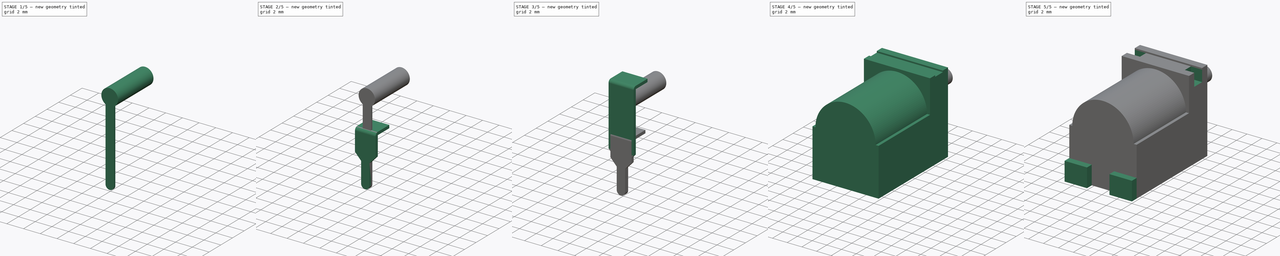
[diagram: build sequence overview — one tinted view per stage of 5, left to right]
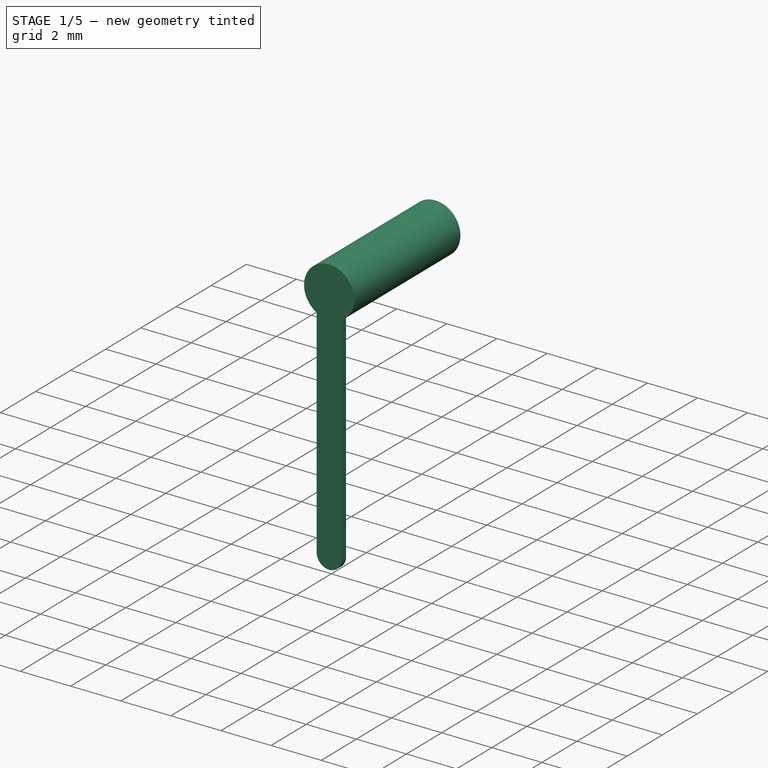
[diagram: stage 1 of 5 — iso view after this stage's code; geometry added in this stage tinted green]
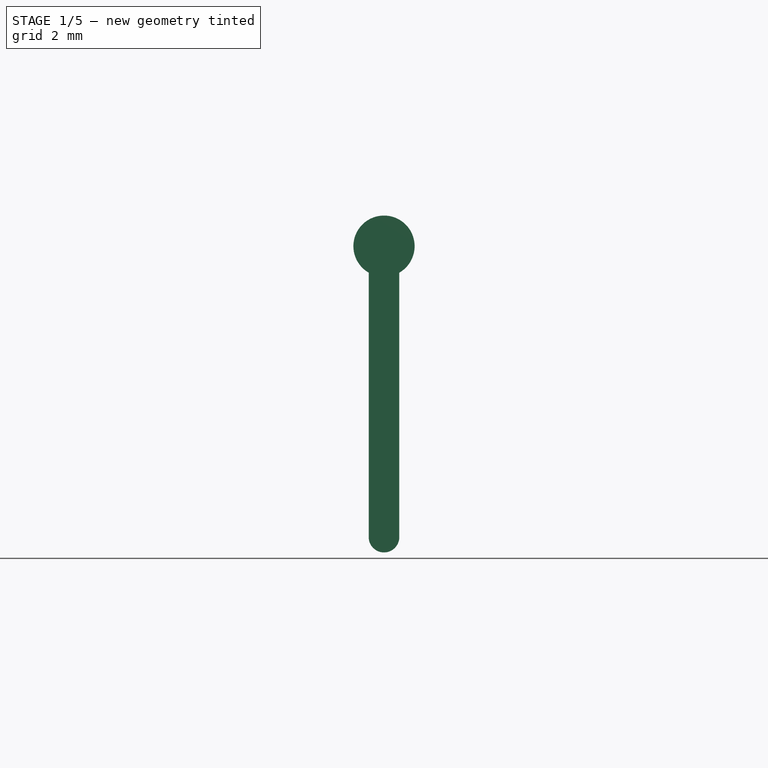
[diagram: stage 1 of 5 — front view after this stage's code; geometry added in this stage tinted green]
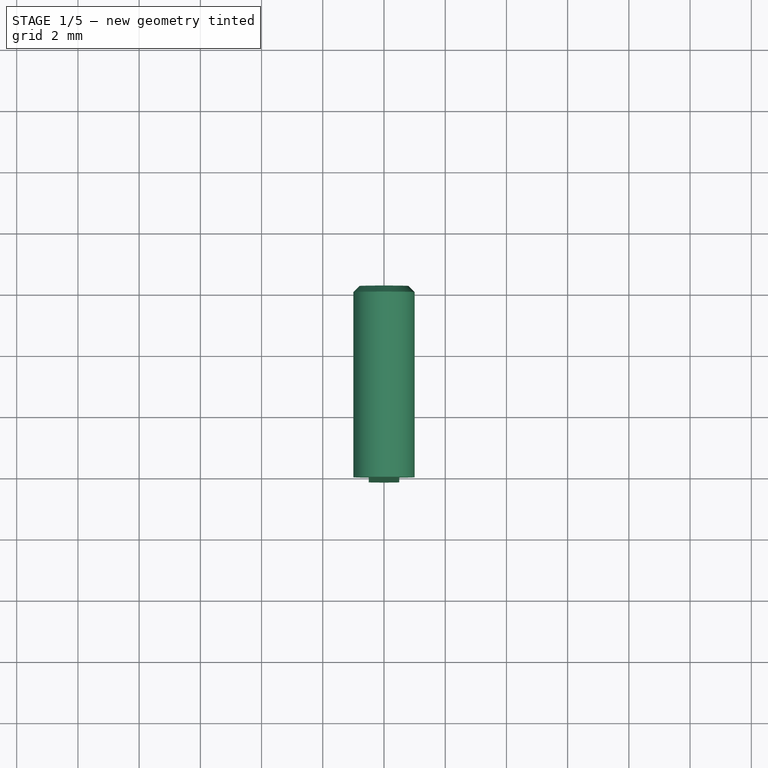
[diagram: stage 1 of 5 — top view after this stage's code; geometry added in this stage tinted green]
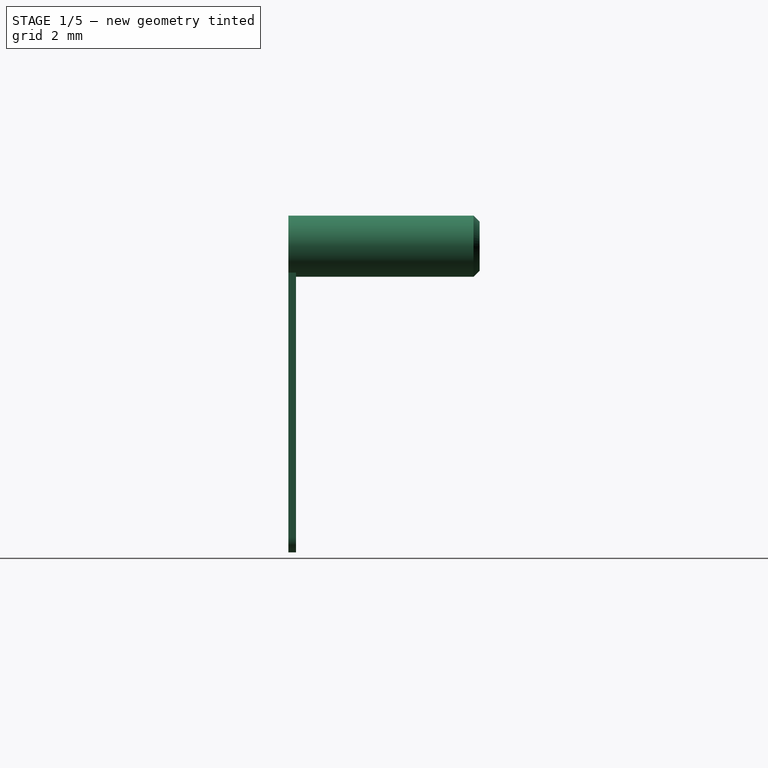
[diagram: stage 1 of 5 — right view after this stage's code; geometry added in this stage tinted green]
FCSTD DOCUMENT  (FreeCAD 0.17R13541 (Git))
Label: barrel_jack
License: All rights reserved
LicenseURL: http://en.wikipedia.org/wiki/All_rights_reserved
objects: Sketcher::SketchObject×12, PartDesign::Pad×9, PartDesign::Body×4, PartDesign::Pocket×3, PartDesign::Fillet×2, PartDesign::Chamfer×1, App::Part×1
note: 43 computed .brp shape members not serialized (recipe doc carries the construction recipe); baked Part::Feature solids carry a one-line shape summary decoded from their .brp

FEATURE [PartDesign::Body] Body002  label="leg_side"
  Group = -> [Sketch009,Pad005,Sketch010,Pad006,Fillet001]
  Origin = -> Origin003
  Placement = pos=(-4.5,-3,0) rot=(0,0,1;-1.5708rad)
  Tip = -> Fillet001
FEATURE [Sketcher::SketchObject] Sketch011
  MapMode = 5
  Placement = pos=(0,0,0) rot=(1,0,0;1.5708rad)
  Support = -> [XZ_Plane004]
  sketch-geometry (4):
    g0: ArcOfCircle CenterX=0 CenterY=-3 CenterZ=0 NormalX=0 NormalY=0 NormalZ=1 AngleXU=0 Radius=0.5 StartAngle=3.14159 EndAngle=6.28319
    g1: ArcOfCircle CenterX=0 CenterY=6.50603 CenterZ=0 NormalX=0 NormalY=0 NormalZ=1 AngleXU=0 Radius=1 StartAngle=5.23599 EndAngle=10.472
    g2: LineSegment StartX=0.5 StartY=5.64 StartZ=0 EndX=0.5 EndY=-3 EndZ=0
    g3: LineSegment StartX=-0.5 StartY=-3 StartZ=0 EndX=-0.5 EndY=5.64 EndZ=0
  constraints (14):
    c: Coincident(g2,g1)
    c: Coincident(g2,g0)
    c: Vertical(g2)
    c: Coincident(g3,g0)
    c: Coincident(g3,g1)
    c: Vertical(g3)
    c: Radius(g1) = 1
    c: Radius(g0) = 0.5
    c: Horizontal(g0,g0)
    c: Horizontal(g0,g0)
    c: Horizontal(g1,g1)
    c: Distance(g2) = 8.64
    c: PointOnObject(g0,g-2)
    c: Distance(g0,g-1) = 3
FEATURE [PartDesign::Pad] Pad007
  Length = 0.125
  Length2 = 0.125
  Placement = pos=(0,0,0) rot=(1,0,0;1.5708rad)
  Profile = -> Sketch011
  Type = 4
FEATURE [Sketcher::SketchObject] Sketch012
  ExternalGeometry = -> [Pad007]
  MapMode = 5
  Placement = pos=(0,0.125,0) rot=(-1,0,0;1.5708rad)
  Support = -> [Pad007]
  sketch-geometry (1):
    g0: Circle CenterX=0 CenterY=-6.50603 CenterZ=0 NormalX=0 NormalY=0 NormalZ=1 AngleXU=0 Radius=1
  constraints (2):
    c: Coincident(g0,g-3)
    c: PointOnObject(g-3,g0)
FEATURE [PartDesign::Pad] Pad008
  BaseFeature = -> Pad007
  Length = 6
  Length2 = 100
  Placement = pos=(0,0,0) rot=(1,0,0;1.5708rad)
  Profile = -> Sketch012
  Type = 0
FEATURE [PartDesign::Chamfer] Chamfer
  Base = -> Pad008 [Edge16]
  BaseFeature = -> Pad008
  Placement = pos=(0,0,0) rot=(1,0,0;1.5708rad)
  Size = 0.2
FEATURE [PartDesign::Body] Body003  label="leg_barrel"
  Group = -> [Sketch011,Pad007,Sketch012,Pad008,Chamfer]
  Origin = -> Origin004
  Tip = -> Chamfer
FEATURE [App::Part] Part
  Group = -> [Body,Body001,Body002,Body003]
  License = CC BY 3.0
  LicenseURL = http://creativecommons.org/licenses/by/3.0/
  Origin = -> Origin
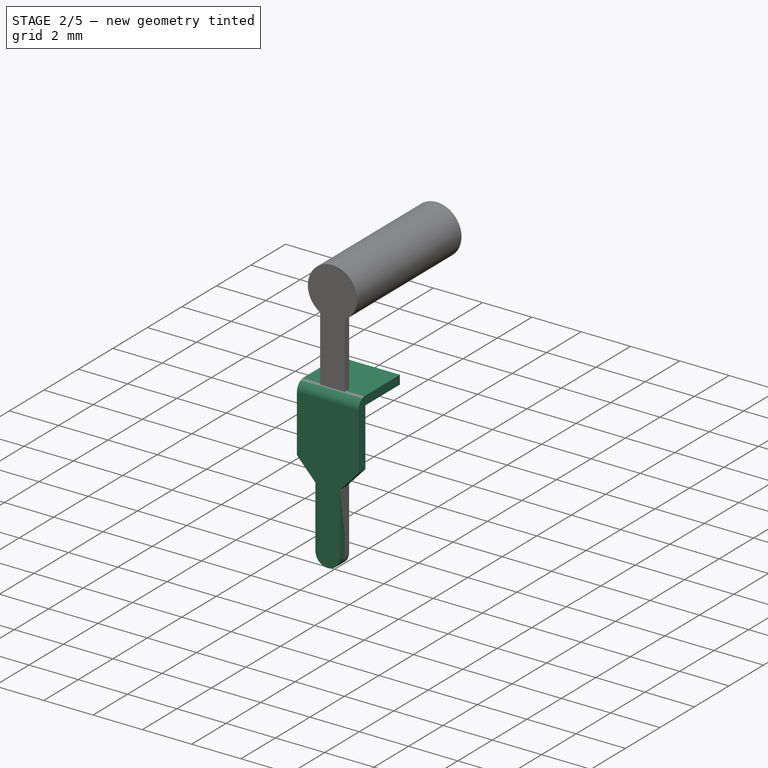
[diagram: stage 2 of 5 — iso view after this stage's code; geometry added in this stage tinted green]
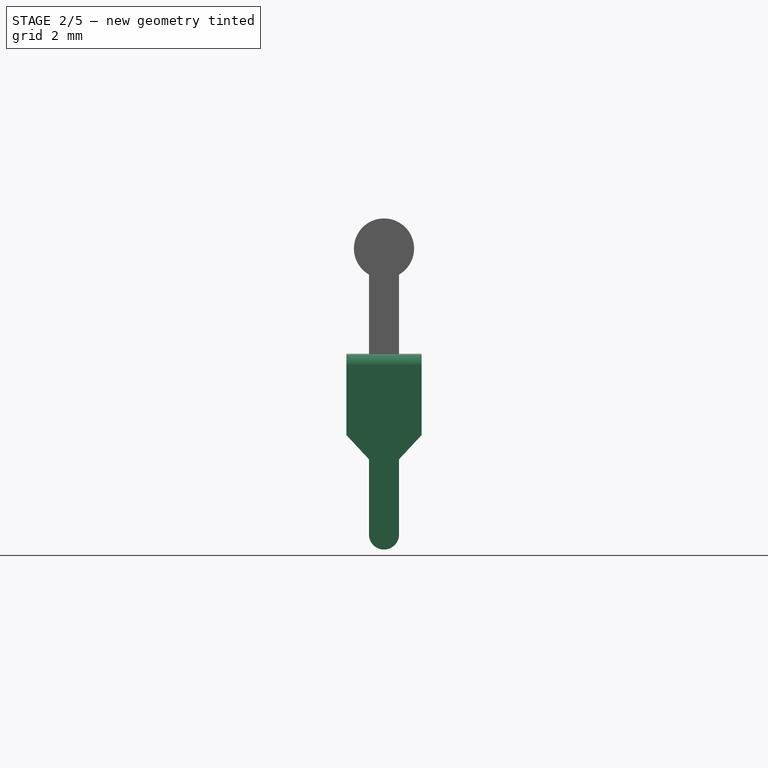
[diagram: stage 2 of 5 — front view after this stage's code; geometry added in this stage tinted green]
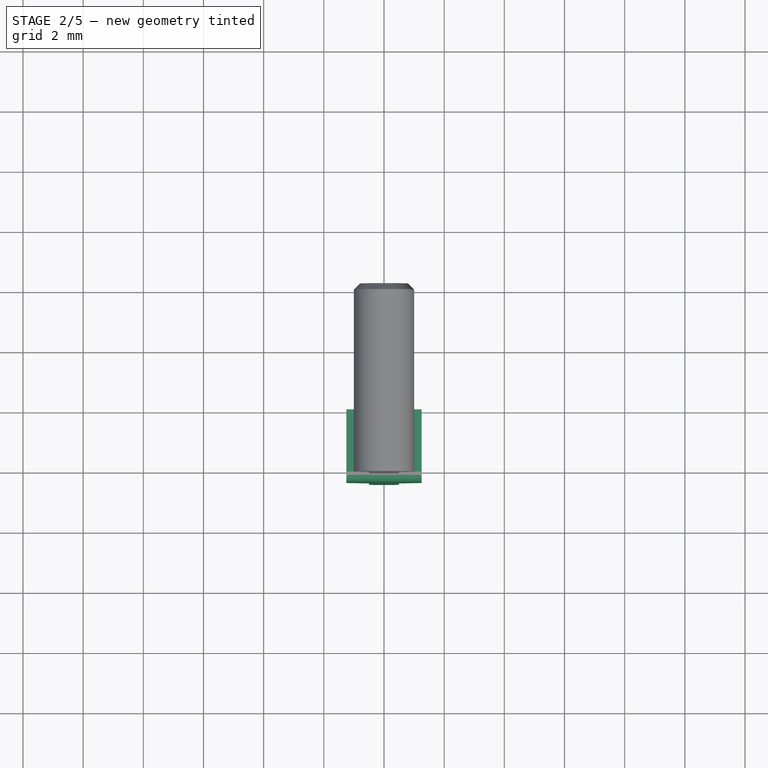
[diagram: stage 2 of 5 — top view after this stage's code; geometry added in this stage tinted green]
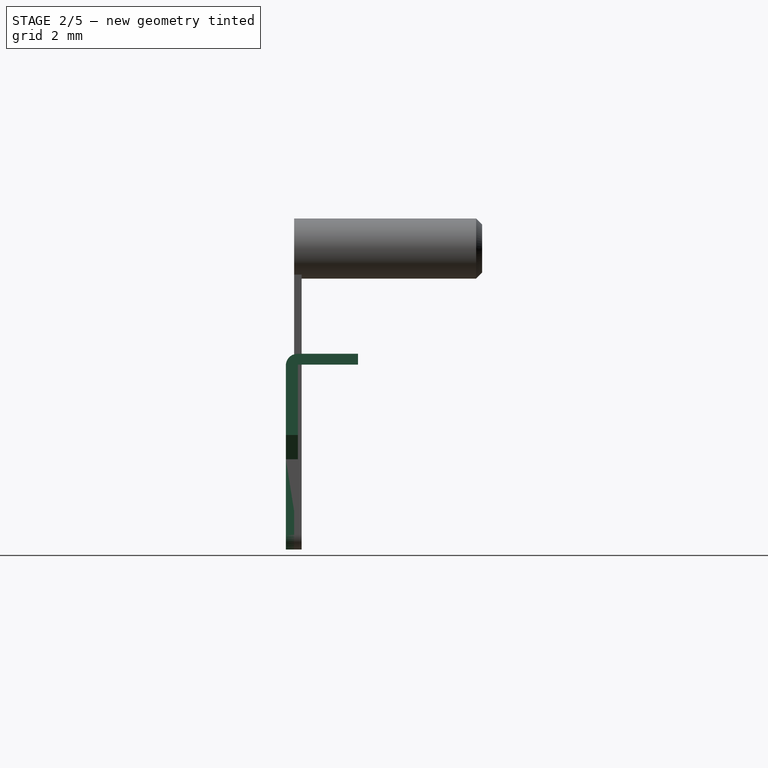
[diagram: stage 2 of 5 — right view after this stage's code; geometry added in this stage tinted green]
FEATURE [PartDesign::Body] Body001  label="leg_back"
  Group = -> [Sketch006,Pad003,Sketch007,Pad004,Fillet]
  Origin = -> Origin002
  Placement = pos=(0,-5.82,0) rot=(0,0,1;0rad)
  Tip = -> Fillet
FEATURE [Sketcher::SketchObject] Sketch009
  MapMode = 5
  Placement = pos=(0,0,0) rot=(1,0,0;1.5708rad)
  Support = -> [XZ_Plane003]
  sketch-geometry (9):
    g0: LineSegment StartX=-0.5 StartY=-3 StartZ=0 EndX=-0.5 EndY=-0.5 EndZ=0
    g1: LineSegment StartX=-0.5 StartY=-0.5 StartZ=0 EndX=-1.25 EndY=0.306531 EndZ=0
    g2: LineSegment StartX=-1.25 StartY=0.306531 StartZ=0 EndX=-1.25 EndY=3.00653 EndZ=0
    g3: LineSegment StartX=-1.25 StartY=3.00653 StartZ=0 EndX=1.25 EndY=3.00653 EndZ=0
    g4: LineSegment StartX=1.25 StartY=3.00653 StartZ=0 EndX=1.25 EndY=0.306531 EndZ=0
    g5: LineSegment StartX=1.25 StartY=0.306531 StartZ=0 EndX=0.5 EndY=-0.5 EndZ=0
    g6: LineSegment StartX=0.5 StartY=-0.5 StartZ=0 EndX=0.5 EndY=-3 EndZ=0
    g7: ArcOfCircle CenterX=0 CenterY=-3 CenterZ=0 NormalX=0 NormalY=0 NormalZ=1 AngleXU=0 Radius=0.5 StartAngle=3.14159 EndAngle=6.28319
    g8: GeomPoint X=0 Y=3.00653 Z=0
  constraints (27):
    c: Vertical(g0)
    c: Coincident(g0,g1)
    c: Coincident(g1,g2)
    c: Vertical(g2)
    c: Coincident(g2,g3)
    c: Horizontal(g3)
    c: Coincident(g3,g4)
    c: Vertical(g4)
    c: Coincident(g4,g5)
    c: Coincident(g5,g6)
    c: Vertical(g6)
    c: Coincident(g7,g6)
    c: Coincident(g7,g0)
    c: Horizontal(g0,g7)
    c: Horizontal(g7,g6)
    c: Horizontal(g0,g5)
    c: Horizontal(g1,g4)
    c: Distance(g3) = 2.5
    c: Distance(g4) = 2.7
    c: Distance(g0) = 2.5
    c: Radius(g7) = 0.5
    c: Angle(g6,g5) = 2.3925
    c: Equal(g1,g5)
    c: PointOnObject(g8,g3)
    c: Symmetric(g2,g3,g8)
    c: PointOnObject(g8,g-2)
    c: Distance(g-1,g7) = 3
FEATURE [PartDesign::Pad] Pad005
  Length = 0.4
  Length2 = 100
  Placement = pos=(0,0,0) rot=(1,0,0;1.5708rad)
  Profile = -> Sketch009
  Type = 0
FEATURE [Sketcher::SketchObject] Sketch010
  ExternalGeometry = -> [Pad005]
  MapMode = 5
  Placement = pos=(0,0,0) rot=(-1,0,0;1.5708rad)
  Support = -> [Pad005]
  sketch-geometry (4):
    g0: LineSegment StartX=-1.25 StartY=-3.00653 StartZ=0 EndX=1.25 EndY=-3.00653 EndZ=0
    g1: LineSegment StartX=1.25 StartY=-3.00653 StartZ=0 EndX=1.25 EndY=-2.64653 EndZ=0
    g2: LineSegment StartX=1.25 StartY=-2.64653 StartZ=0 EndX=-1.25 EndY=-2.64653 EndZ=0
    g3: LineSegment StartX=-1.25 StartY=-2.64653 StartZ=0 EndX=-1.25 EndY=-3.00653 EndZ=0
  constraints (11):
    c: Coincident(g0,g1)
    c: Coincident(g1,g2)
    c: Coincident(g2,g3)
    c: Coincident(g3,g0)
    c: Horizontal(g0)
    c: Horizontal(g2)
    c: Vertical(g1)
    c: Vertical(g3)
    c: Coincident(g0,g-3)
    c: Coincident(g0,g-3)
    c: Distance(g1) = 0.36
FEATURE [PartDesign::Pad] Pad006
  BaseFeature = -> Pad005
  Length = 2
  Length2 = 100
  Placement = pos=(0,0,0) rot=(1,0,0;1.5708rad)
  Profile = -> Sketch010
  Type = 0
FEATURE [PartDesign::Fillet] Fillet001
  Base = -> Pad006 [Edge17]
  BaseFeature = -> Pad006
  Placement = pos=(0,0,0) rot=(1,0,0;1.5708rad)
  Radius = 0.39
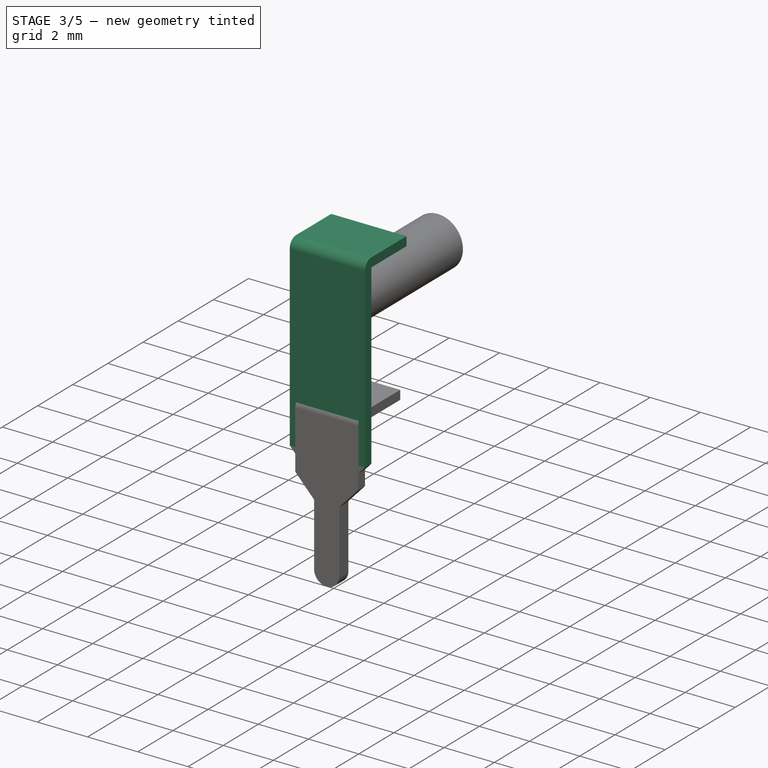
[diagram: stage 3 of 5 — iso view after this stage's code; geometry added in this stage tinted green]
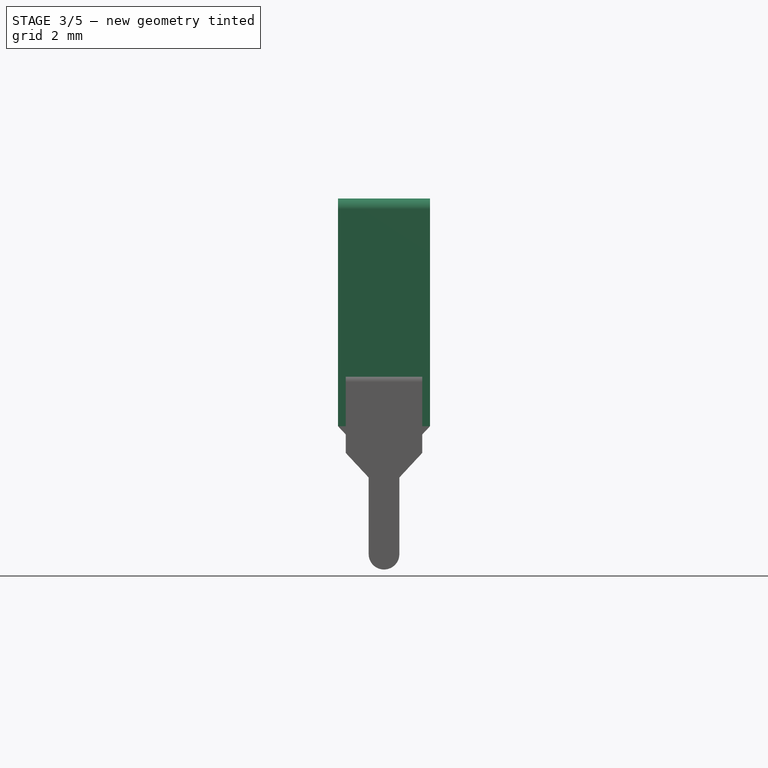
[diagram: stage 3 of 5 — front view after this stage's code; geometry added in this stage tinted green]
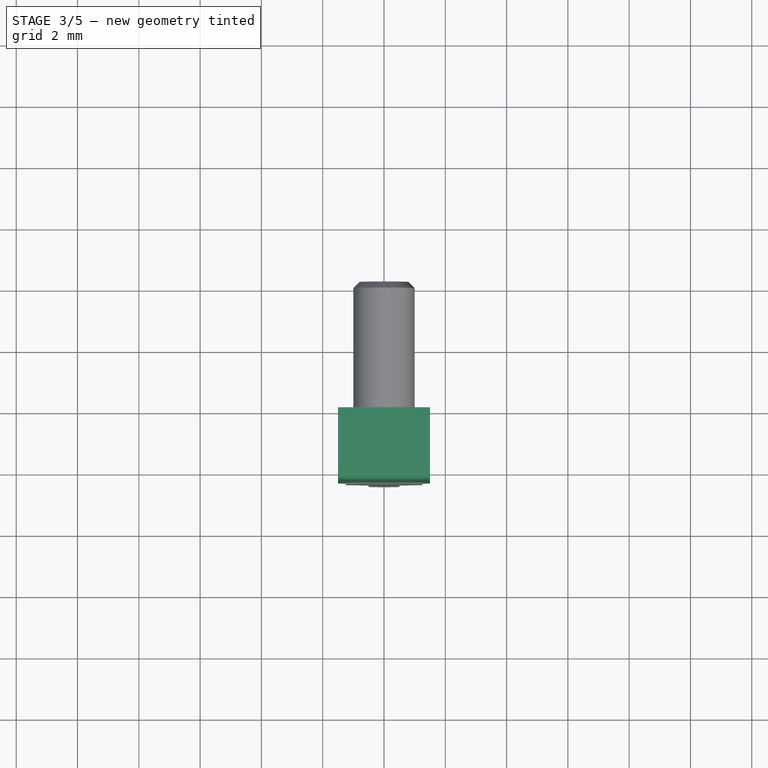
[diagram: stage 3 of 5 — top view after this stage's code; geometry added in this stage tinted green]
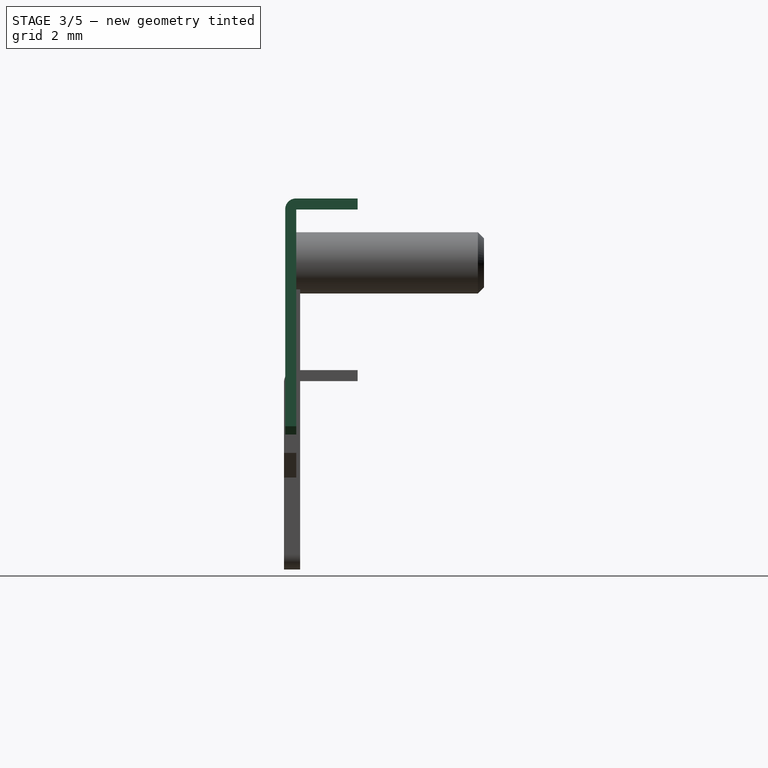
[diagram: stage 3 of 5 — right view after this stage's code; geometry added in this stage tinted green]
FEATURE [PartDesign::Body] Body  label="body"
  Group = -> [Sketch,Pad,Sketch001,Pad001,Sketch002,Pocket,Sketch003,Pocket001,Sketch004,Pocket002,Sketch005,Pad002]
  Origin = -> Origin001
  Placement = pos=(0,7.7,0) rot=(0,0,1;0rad)
  Tip = -> Pad002
FEATURE [Sketcher::SketchObject] Sketch006
  MapMode = 5
  Placement = pos=(0,0,0) rot=(1,0,0;1.5708rad)
  Support = -> [XZ_Plane002]
  sketch-geometry (9):
    g0: LineSegment StartX=-0.5 StartY=-3 StartZ=0 EndX=-0.5 EndY=0.1 EndZ=0
    g1: LineSegment StartX=-0.5 StartY=0.1 StartZ=0 EndX=-1.5 EndY=1.17538 EndZ=0
    g2: LineSegment StartX=-1.5 StartY=1.17538 StartZ=0 EndX=-1.5 EndY=8.60538 EndZ=0
    g3: LineSegment StartX=-1.5 StartY=8.60538 StartZ=0 EndX=1.5 EndY=8.60538 EndZ=0
    g4: LineSegment StartX=1.5 StartY=8.60538 StartZ=0 EndX=1.5 EndY=1.17538 EndZ=0
    g5: LineSegment StartX=1.5 StartY=1.17538 StartZ=0 EndX=0.5 EndY=0.1 EndZ=0
    g6: LineSegment StartX=0.5 StartY=0.1 StartZ=0 EndX=0.5 EndY=-3 EndZ=0
    g7: ArcOfCircle CenterX=0 CenterY=-3 CenterZ=0 NormalX=0 NormalY=0 NormalZ=1 AngleXU=0 Radius=0.5 StartAngle=3.14159 EndAngle=6.28319
    g8: GeomPoint X=0 Y=8.60538 Z=0
  constraints (27):
    c: Vertical(g0)
    c: Coincident(g0,g1)
    c: Coincident(g1,g2)
    c: Vertical(g2)
    c: Coincident(g2,g3)
    c: Horizontal(g3)
    c: Coincident(g3,g4)
    c: Vertical(g4)
    c: Coincident(g4,g5)
    c: Coincident(g5,g6)
    c: Vertical(g6)
    c: Coincident(g7,g6)
    c: Coincident(g7,g0)
    c: Horizontal(g0,g7)
    c: Horizontal(g7,g6)
    c: Horizontal(g0,g5)
    c: Horizontal(g1,g4)
    c: Distance(g3) = 3
    c: Distance(g4) = 7.43
    c: Distance(g0) = 3.1
    c: Radius(g7) = 0.5
    c: Angle(g6,g5) = 2.3925
    c: Equal(g1,g5)
    c: PointOnObject(g8,g3)
    c: Symmetric(g2,g3,g8)
    c: PointOnObject(g8,g-2)
    c: Distance(g-1,g7) = 3
FEATURE [PartDesign::Pad] Pad003
  Length = 0.36
  Length2 = 100
  Placement = pos=(0,0,0) rot=(1,0,0;1.5708rad)
  Profile = -> Sketch006
  Type = 0
FEATURE [Sketcher::SketchObject] Sketch007
  ExternalGeometry = -> [Pad003]
  MapMode = 5
  Placement = pos=(0,0,0) rot=(-1,0,0;1.5708rad)
  Support = -> [Pad003]
  sketch-geometry (4):
    g0: LineSegment StartX=-1.5 StartY=-8.24538 StartZ=0 EndX=1.5 EndY=-8.24538 EndZ=0
    g1: LineSegment StartX=1.5 StartY=-8.24538 StartZ=0 EndX=1.5 EndY=-8.60538 EndZ=0
    g2: LineSegment StartX=1.5 StartY=-8.60538 StartZ=0 EndX=-1.5 EndY=-8.60538 EndZ=0
    g3: LineSegment StartX=-1.5 StartY=-8.60538 StartZ=0 EndX=-1.5 EndY=-8.24538 EndZ=0
  constraints (11):
    c: Coincident(g0,g1)
    c: Coincident(g1,g2)
    c: Coincident(g2,g3)
    c: Coincident(g3,g0)
    c: Horizontal(g0)
    c: Horizontal(g2)
    c: Vertical(g1)
    c: Vertical(g3)
    c: Coincident(g1,g-3)
    c: Coincident(g2,g-3)
    c: Distance(g1) = 0.36
FEATURE [PartDesign::Pad] Pad004
  BaseFeature = -> Pad003
  Length = 2
  Length2 = 100
  Placement = pos=(0,0,0) rot=(1,0,0;1.5708rad)
  Profile = -> Sketch007
  Type = 0
FEATURE [PartDesign::Fillet] Fillet
  Base = -> Pad004 [Edge17]
  BaseFeature = -> Pad004
  Placement = pos=(0,0,0) rot=(1,0,0;1.5708rad)
  Radius = 0.35
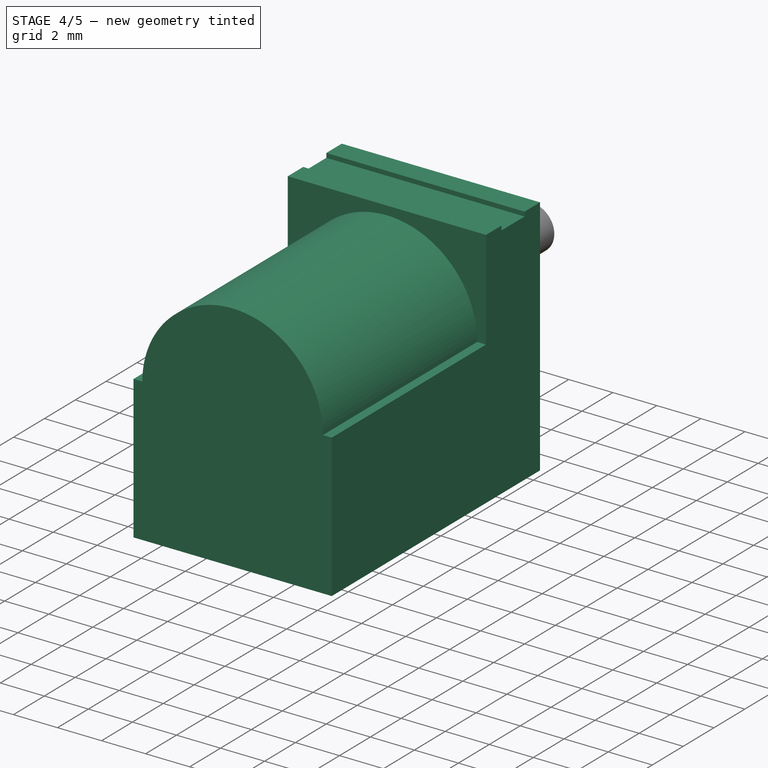
[diagram: stage 4 of 5 — iso view after this stage's code; geometry added in this stage tinted green]
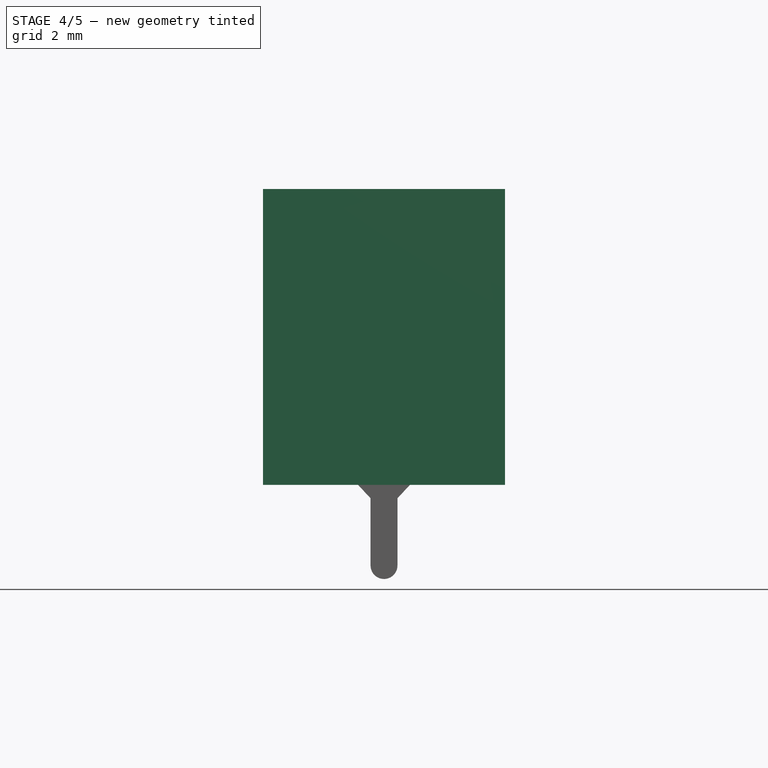
[diagram: stage 4 of 5 — front view after this stage's code; geometry added in this stage tinted green]
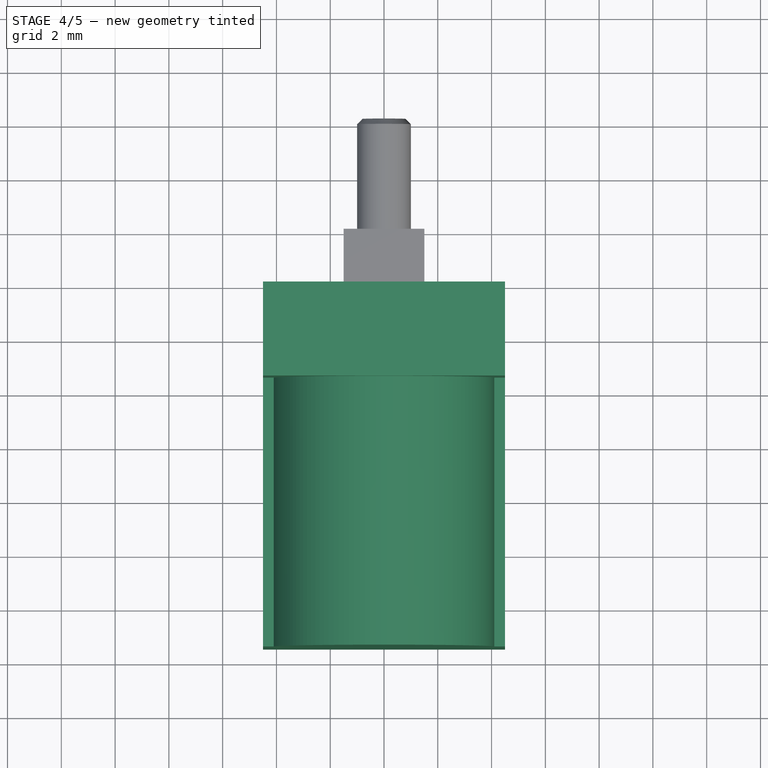
[diagram: stage 4 of 5 — top view after this stage's code; geometry added in this stage tinted green]
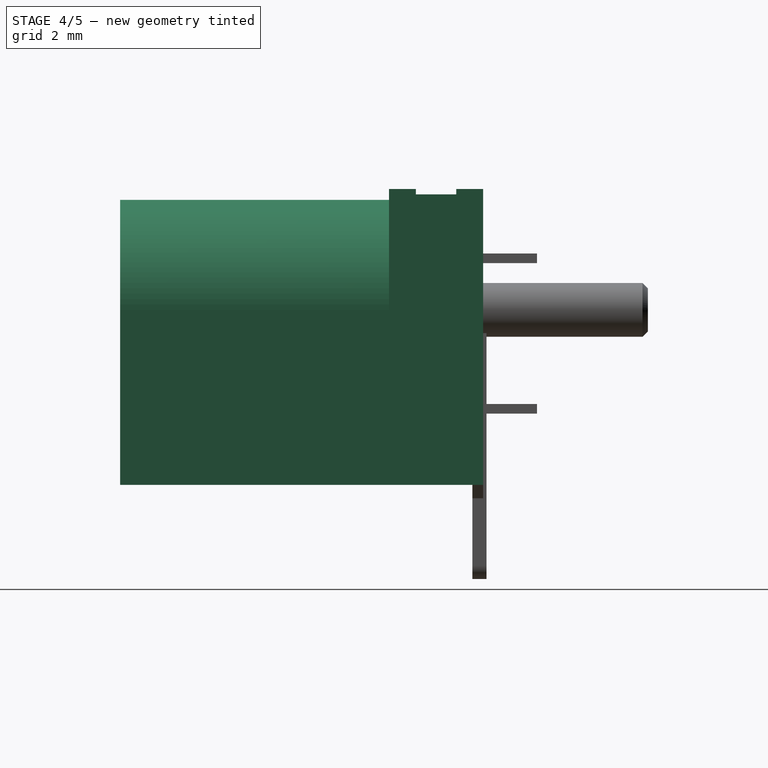
[diagram: stage 4 of 5 — right view after this stage's code; geometry added in this stage tinted green]
FEATURE [Sketcher::SketchObject] Sketch
  MapMode = 5
  Placement = pos=(0,0,0) rot=(1,0,0;1.5708rad)
  Support = -> [XZ_Plane001]
  sketch-geometry (4):
    g0: LineSegment StartX=-4.5 StartY=11 StartZ=0 EndX=4.5 EndY=11 EndZ=0
    g1: LineSegment StartX=4.5 StartY=11 StartZ=0 EndX=4.5 EndY=0 EndZ=0
    g2: LineSegment StartX=4.5 StartY=0 StartZ=0 EndX=-4.5 EndY=0 EndZ=0
    g3: LineSegment StartX=-4.5 StartY=0 StartZ=0 EndX=-4.5 EndY=11 EndZ=0
  constraints (12):
    c: Coincident(g0,g1)
    c: Coincident(g1,g2)
    c: Coincident(g2,g3)
    c: Coincident(g3,g0)
    c: Horizontal(g0)
    c: Horizontal(g2)
    c: Vertical(g1)
    c: Vertical(g3)
    c: PointOnObject(g1,g-1)
    c: Distance(g0) = 9
    c: Distance(g1) = 11
    c: Symmetric(g2,g1,g-1)
FEATURE [PartDesign::Pad] Pad
  Length = 3.5
  Length2 = 100
  Placement = pos=(0,0,0) rot=(1,0,0;1.5708rad)
  Profile = -> Sketch
  Type = 0
FEATURE [Sketcher::SketchObject] Sketch001
  ExternalGeometry = -> [Pad]
  MapMode = 5
  Placement = pos=(0,-3.5,0) rot=(1,0,0;1.5708rad)
  Support = -> [Pad]
  sketch-geometry (6):
    g0: LineSegment StartX=-4.5 StartY=0 StartZ=0 EndX=4.5 EndY=0 EndZ=0
    g1: LineSegment StartX=4.5 StartY=0 StartZ=0 EndX=4.5 EndY=6.5 EndZ=0
    g2: LineSegment StartX=-4.5 StartY=0 StartZ=0 EndX=-4.5 EndY=6.5 EndZ=0
    g3: LineSegment StartX=-4.5 StartY=6.5 StartZ=0 EndX=-4.1 EndY=6.5 EndZ=0
    g4: LineSegment StartX=4.5 StartY=6.5 StartZ=0 EndX=4.1 EndY=6.5 EndZ=0
    g5: ArcOfCircle CenterX=0 CenterY=6.5 CenterZ=0 NormalX=0 NormalY=0 NormalZ=1 AngleXU=0 Radius=4.1 StartAngle=0 EndAngle=3.14159
  constraints (17):
    c: Coincident(g0,g-3)
    c: Coincident(g0,g-3)
    c: Coincident(g1,g0)
    c: Vertical(g1)
    c: Coincident(g2,g0)
    c: Vertical(g2)
    c: Equal(g1,g2)
    c: Coincident(g3,g2)
    c: Horizontal(g3)
    c: Coincident(g4,g1)
    c: Horizontal(g4)
    c: Equal(g4,g3)
    c: Coincident(g5,g3)
    c: Coincident(g5,g4)
    c: Horizontal(g5,g3)
    c: Distance(g1) = 6.5
    c: Radius(g5) = 4.1
FEATURE [PartDesign::Pad] Pad001
  BaseFeature = -> Pad
  Length = 10
  Length2 = 100
  Placement = pos=(0,0,0) rot=(1,0,0;1.5708rad)
  Profile = -> Sketch001
  Type = 0
FEATURE [Sketcher::SketchObject] Sketch002
  ExternalGeometry = -> [Pad001]
  MapMode = 5
  Placement = pos=(0,0,11) rot=(0,0,1;3.14159rad)
  Support = -> [Pad001]
  sketch-geometry (4):
    g0: LineSegment StartX=-4.5 StartY=1 StartZ=0 EndX=4.5 EndY=1 EndZ=0
    g1: LineSegment StartX=4.5 StartY=1 StartZ=0 EndX=4.5 EndY=2.5 EndZ=0
    g2: LineSegment StartX=4.5 StartY=2.5 StartZ=0 EndX=-4.5 EndY=2.5 EndZ=0
    g3: LineSegment StartX=-4.5 StartY=2.5 StartZ=0 EndX=-4.5 EndY=1 EndZ=0
  constraints (12):
    c: Coincident(g0,g1)
    c: Coincident(g1,g2)
    c: Coincident(g2,g3)
    c: Coincident(g3,g0)
    c: Horizontal(g0)
    c: Horizontal(g2)
    c: Vertical(g1)
    c: Vertical(g3)
    c: PointOnObject(g0,g-3)
    c: PointOnObject(g1,g-4)
    c: Distance(g1) = 1.5
    c: Distance(g-1,g0) = 1
FEATURE [PartDesign::Pocket] Pocket
  BaseFeature = -> Pad001
  Length = 0.2
  Length2 = 100
  Placement = pos=(0,0,0) rot=(1,0,0;1.5708rad)
  Profile = -> Sketch002
  Type = 0
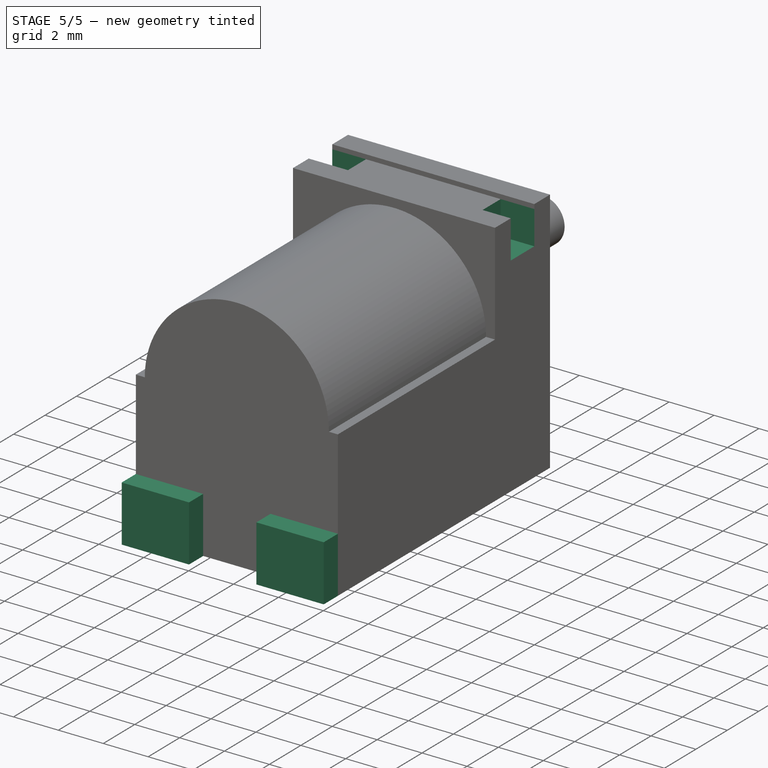
[diagram: stage 5 of 5 — iso view after this stage's code; geometry added in this stage tinted green]
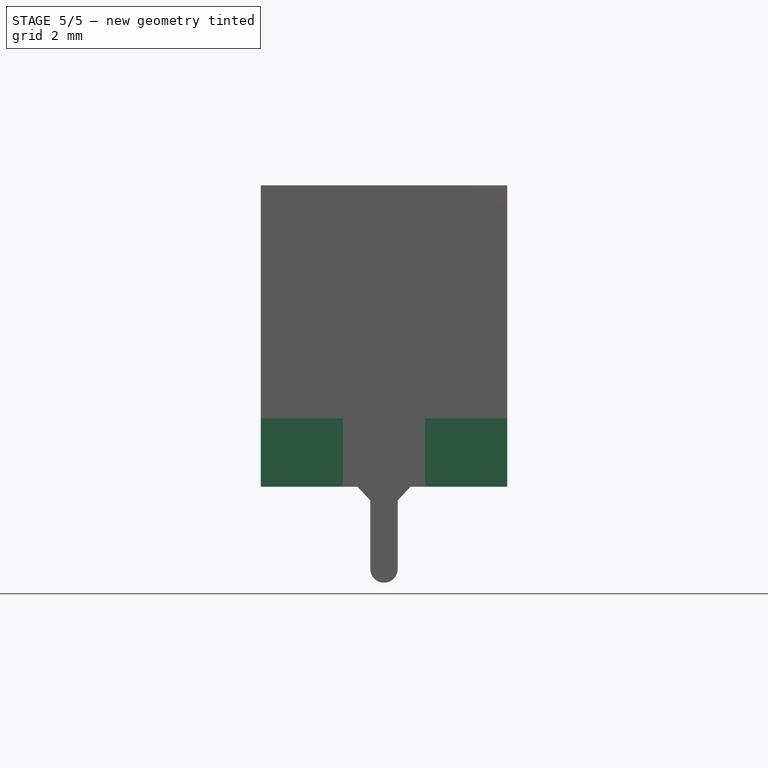
[diagram: stage 5 of 5 — front view after this stage's code; geometry added in this stage tinted green]
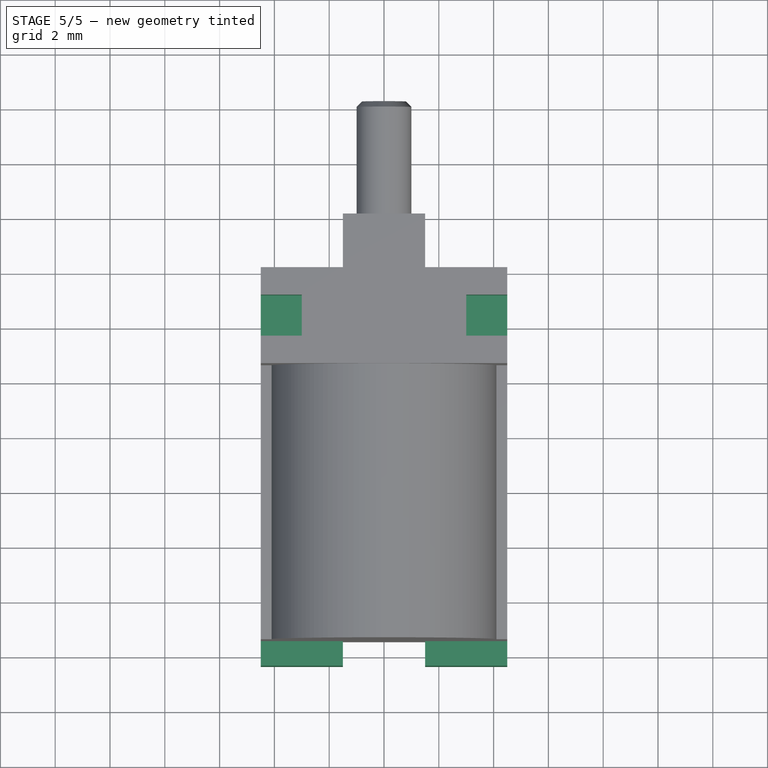
[diagram: stage 5 of 5 — top view after this stage's code; geometry added in this stage tinted green]
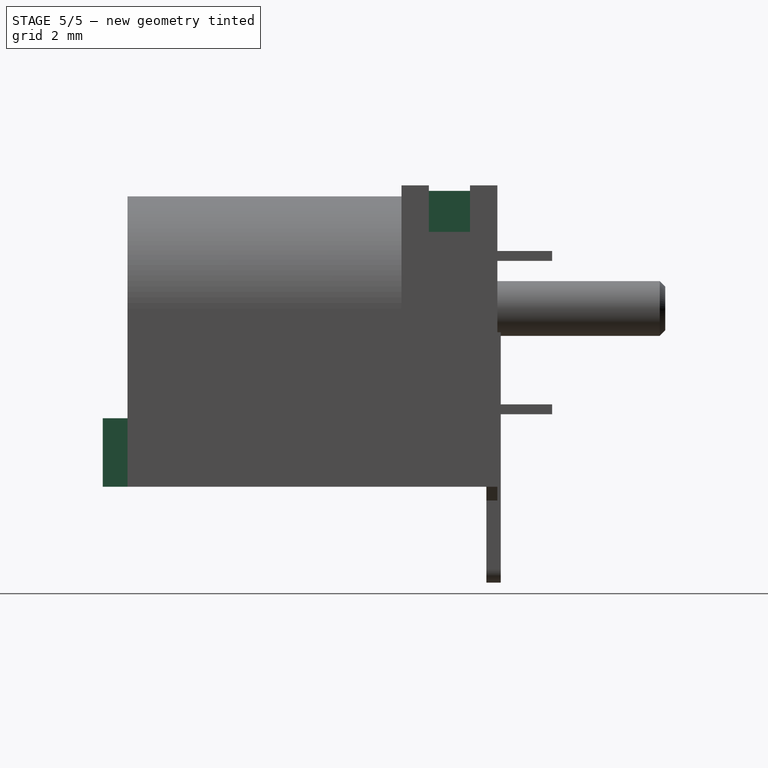
[diagram: stage 5 of 5 — right view after this stage's code; geometry added in this stage tinted green]
FEATURE [Sketcher::SketchObject] Sketch003
  ExternalGeometry = -> [Pocket]
  MapMode = 5
  Placement = pos=(0,0,10.8) rot=(0,0,1;3.14159rad)
  Support = -> [Pocket]
  sketch-geometry (8):
    g0: LineSegment StartX=-4.5 StartY=2.5 StartZ=0 EndX=-3 EndY=2.5 EndZ=0
    g1: LineSegment StartX=-3 StartY=2.5 StartZ=0 EndX=-3 EndY=1 EndZ=0
    g2: LineSegment StartX=-3 StartY=1 StartZ=0 EndX=-4.5 EndY=1 EndZ=0
    g3: LineSegment StartX=-4.5 StartY=1 StartZ=0 EndX=-4.5 EndY=2.5 EndZ=0
    g4: LineSegment StartX=3 StartY=2.5 StartZ=0 EndX=4.5 EndY=2.5 EndZ=0
    g5: LineSegment StartX=4.5 StartY=2.5 StartZ=0 EndX=4.5 EndY=1 EndZ=0
    g6: LineSegment StartX=4.5 StartY=1 StartZ=0 EndX=3 EndY=1 EndZ=0
    g7: LineSegment StartX=3 StartY=1 StartZ=0 EndX=3 EndY=2.5 EndZ=0
  constraints (22):
    c: Coincident(g0,g1)
    c: Coincident(g1,g2)
    c: Coincident(g2,g3)
    c: Coincident(g3,g0)
    c: Horizontal(g0)
    c: Horizontal(g2)
    c: Vertical(g1)
    c: Vertical(g3)
    c: Coincident(g4,g5)
    c: Coincident(g5,g6)
    c: Coincident(g6,g7)
    c: Coincident(g7,g4)
    c: Horizontal(g4)
    c: Horizontal(g6)
    c: Vertical(g5)
    c: Vertical(g7)
    c: Coincident(g0,g-3)
    c: Coincident(g2,g-3)
    c: Coincident(g4,g-4)
    c: Coincident(g5,g-4)
    c: Distance(g0) = 1.5
    c: Distance(g4) = 1.5
FEATURE [PartDesign::Pocket] Pocket001
  BaseFeature = -> Pocket
  Length = 1.5
  Length2 = 100
  Placement = pos=(0,0,0) rot=(1,0,0;1.5708rad)
  Profile = -> Sketch003
  Type = 0
FEATURE [Sketcher::SketchObject] Sketch004
  MapMode = 5
  Placement = pos=(0,0,0) rot=(-1,0,0;1.5708rad)
  Support = -> [Pocket001]
  sketch-geometry (1):
    g0: Circle CenterX=0 CenterY=-6.5 CenterZ=0 NormalX=0 NormalY=0 NormalZ=1 AngleXU=0 Radius=3.2
  constraints (3):
    c: PointOnObject(g0,g-2)
    c: Radius(g0) = 3.2
    c: Distance(g0,g-1) = 6.5
FEATURE [PartDesign::Pocket] Pocket002
  BaseFeature = -> Pocket001
  Length = 7
  Length2 = 100
  Placement = pos=(0,0,0) rot=(1,0,0;1.5708rad)
  Profile = -> Sketch004
  Type = 0
FEATURE [Sketcher::SketchObject] Sketch005
  ExternalGeometry = -> [Pocket002]
  MapMode = 5
  Placement = pos=(0,-13.5,0) rot=(1,0,0;1.5708rad)
  Support = -> [Pocket002]
  sketch-geometry (8):
    g0: LineSegment StartX=-4.5 StartY=0 StartZ=0 EndX=-1.5 EndY=0 EndZ=0
    g1: LineSegment StartX=-1.5 StartY=0 StartZ=0 EndX=-1.5 EndY=2.5 EndZ=0
    g2: LineSegment StartX=-1.5 StartY=2.5 StartZ=0 EndX=-4.5 EndY=2.5 EndZ=0
    g3: LineSegment StartX=-4.5 StartY=2.5 StartZ=0 EndX=-4.5 EndY=0 EndZ=0
    g4: LineSegment StartX=4.5 StartY=0 StartZ=0 EndX=1.5 EndY=0 EndZ=0
    g5: LineSegment StartX=1.5 StartY=0 StartZ=0 EndX=1.5 EndY=2.5 EndZ=0
    g6: LineSegment StartX=1.5 StartY=2.5 StartZ=0 EndX=4.5 EndY=2.5 EndZ=0
    g7: LineSegment StartX=4.5 StartY=2.5 StartZ=0 EndX=4.5 EndY=0 EndZ=0
  constraints (22):
    c: Coincident(g0,g1)
    c: Coincident(g1,g2)
    c: Coincident(g2,g3)
    c: Coincident(g3,g0)
    c: Horizontal(g0)
    c: Horizontal(g2)
    c: Vertical(g1)
    c: Vertical(g3)
    c: Coincident(g4,g5)
    c: Coincident(g5,g6)
    c: Coincident(g6,g7)
    c: Coincident(g7,g4)
    c: Horizontal(g4)
    c: Horizontal(g6)
    c: Vertical(g5)
    c: Vertical(g7)
    c: Coincident(g4,g-5)
    c: Distance(g0) = 3
    c: Distance(g4) = 3
    c: Distance(g7) = 2.5
    c: Distance(g3) = 2.5
    c: Coincident(g0,g-4)
FEATURE [PartDesign::Pad] Pad002
  BaseFeature = -> Pocket002
  Length = 0.9
  Length2 = 100
  Placement = pos=(0,0,0) rot=(1,0,0;1.5708rad)
  Profile = -> Sketch005
  Type = 0
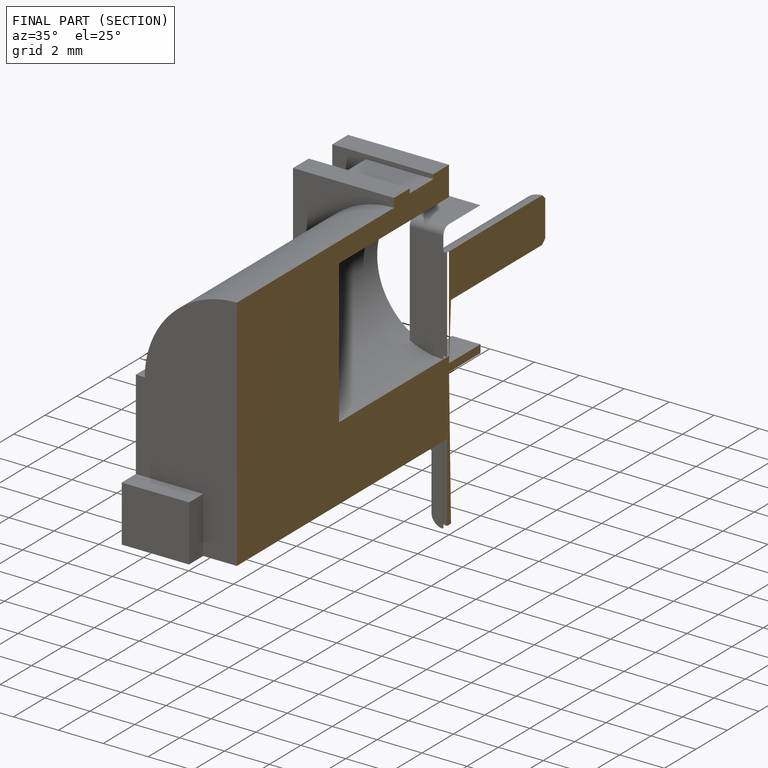
[diagram: finished part — half-section view (interior)]
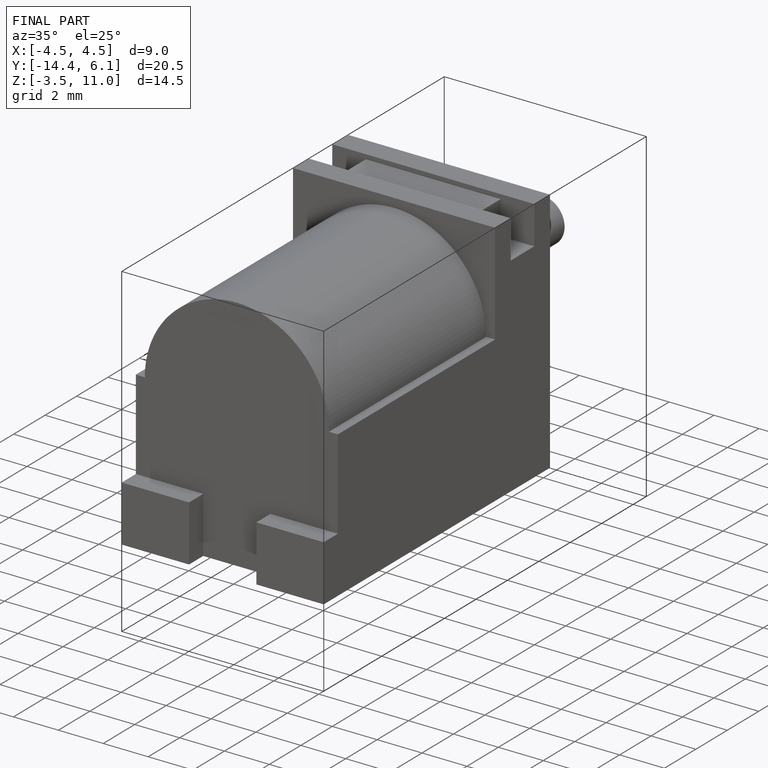
[diagram: finished part — iso view with bounding-box wireframe]
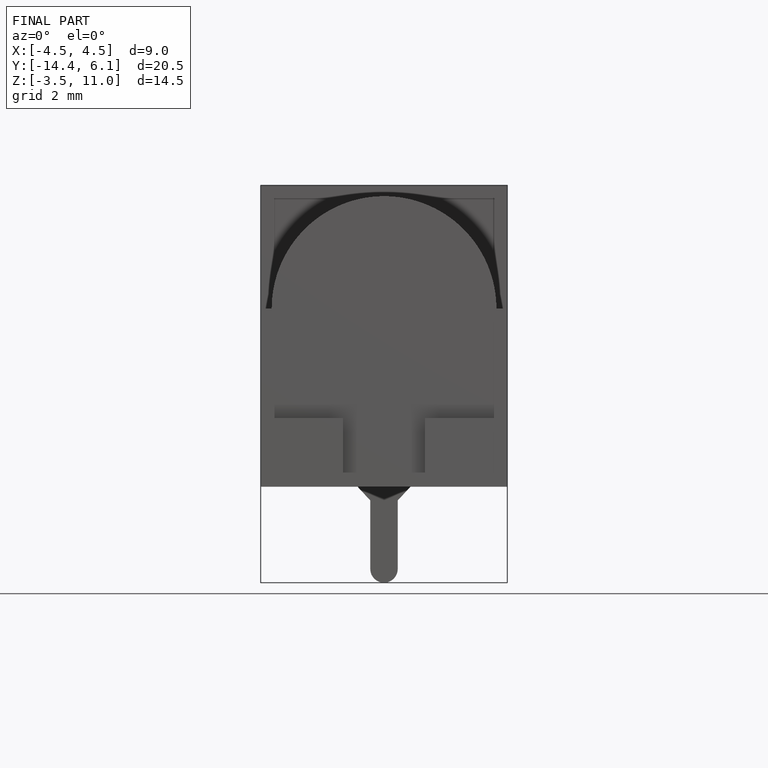
[diagram: finished part — front view with bounding-box wireframe]
